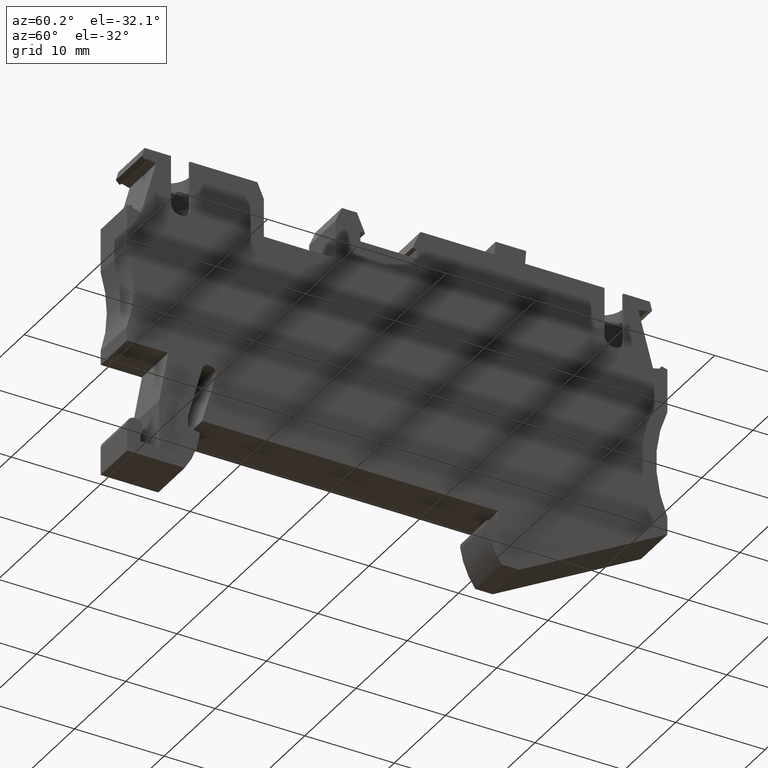
[diagram: clean part render]
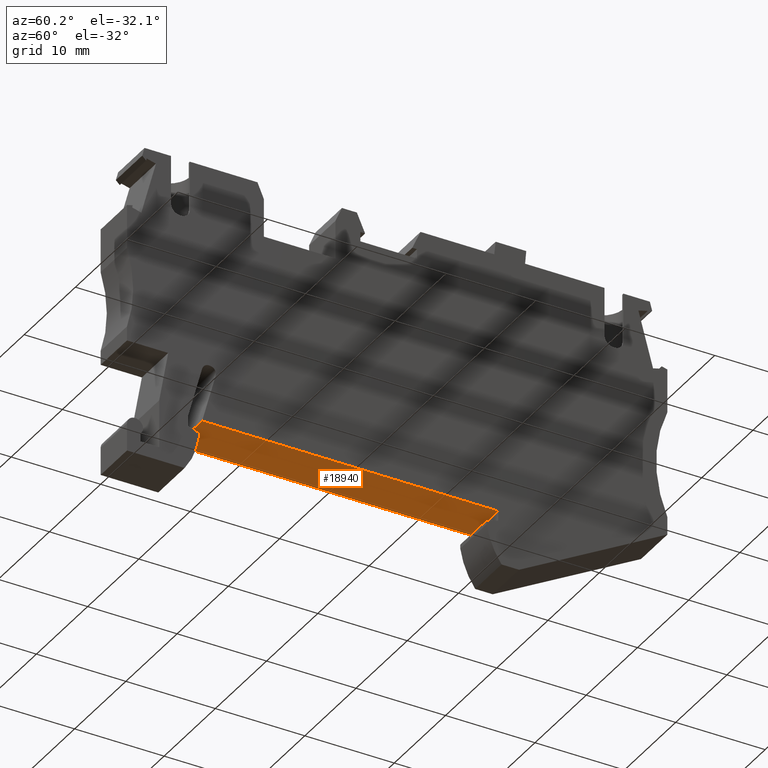
[diagram: same view with one face highlighted and labeled with its STEP entity id]
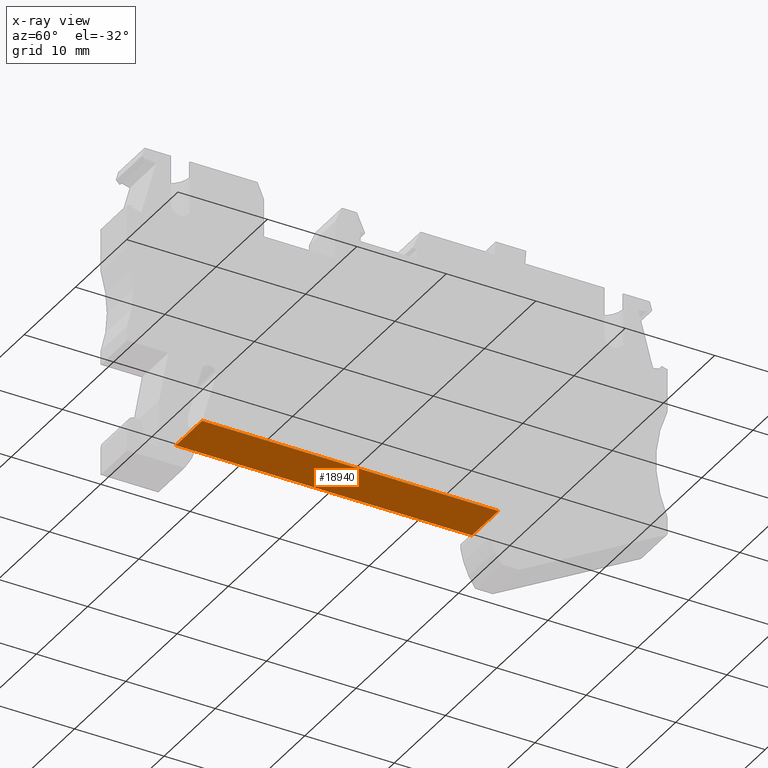
[diagram: x-ray of the same camera — body ghosted, the highlighted face saturated]
A machine part, auxiliary view. The second image highlights one B-rep face of the part: STEP entity #18940.
The next image is the same camera in x-ray: the body ghosted, the highlighted face saturated — about 0% of this face is hidden behind the body in this view.
In plain terms, the highlighted planar face has unit normal (0, 0, -1).
Its self-contained STEP definition (entity closure, byte-faithful):
#10290=CARTESIAN_POINT('',(19.1321672216756,-38.4000000000014,
53.6699999999973));
#10300=VERTEX_POINT('',#10290);
#10380=CARTESIAN_POINT('',(19.1321672216756,-38.4000000000014,
48.5199999999973));
#10390=VERTEX_POINT('',#10380);
#10420=CARTESIAN_POINT('',(19.1321672216756,-38.4000000000014,53.67));
#10430=DIRECTION('',(0.,0.,-1.));
#10440=VECTOR('',#10430,1.);
#10450=LINE('',#10420,#10440);
#10460=EDGE_CURVE('',#10300,#10390,#10450,.T.);
#18640=CARTESIAN_POINT('',(3.71966722167662,-38.4000000000014,
53.6699999999942));
#18650=DIRECTION('',(-0.,-1.,-0.));
#18660=DIRECTION('',(-1.,0.,0.));
#18670=AXIS2_PLACEMENT_3D('',#18640,#18650,#18660);
#18680=PLANE('',#18670);
#18690=CARTESIAN_POINT('',(-34.2873043683398,-38.4000000000014,
53.6699999999908));
#18700=DIRECTION('',(-1.,0.,-1.20466137065733E-13));
#18710=VECTOR('',#18700,1.);
#18720=LINE('',#18690,#18710);
#18730=CARTESIAN_POINT('',(-13.9678327783249,-38.4000000000014,
53.6699999999933));
#18740=VERTEX_POINT('',#18730);
#18750=EDGE_CURVE('',#10300,#18740,#18720,.T.);
#18760=ORIENTED_EDGE('',*,*,#18750,.T.);
#18770=ORIENTED_EDGE('',*,*,#10460,.F.);
#18780=CARTESIAN_POINT('',(-34.2873043683398,-38.4000000000014,
48.5199999999973));
#18790=DIRECTION('',(-1.,0.,0.));
#18800=VECTOR('',#18790,1.);
#18810=LINE('',#18780,#18800);
#18820=CARTESIAN_POINT('',(-13.9678327783249,-38.4000000000014,
48.5199999999973));
#18830=VERTEX_POINT('',#18820);
#18840=EDGE_CURVE('',#10390,#18830,#18810,.T.);
#18850=ORIENTED_EDGE('',*,*,#18840,.F.);
#18860=CARTESIAN_POINT('',(-13.9678327783249,-38.4000000000014,53.67));
#18870=DIRECTION('',(0.,0.,1.));
#18880=VECTOR('',#18870,1.);
#18890=LINE('',#18860,#18880);
#18900=EDGE_CURVE('',#18830,#18740,#18890,.T.);
#18910=ORIENTED_EDGE('',*,*,#18900,.F.);
#18920=EDGE_LOOP('',(#18910,#18850,#18770,#18760));
#18930=FACE_OUTER_BOUND('',#18920,.T.);
#18940=ADVANCED_FACE('',(#18930),#18680,.T.);